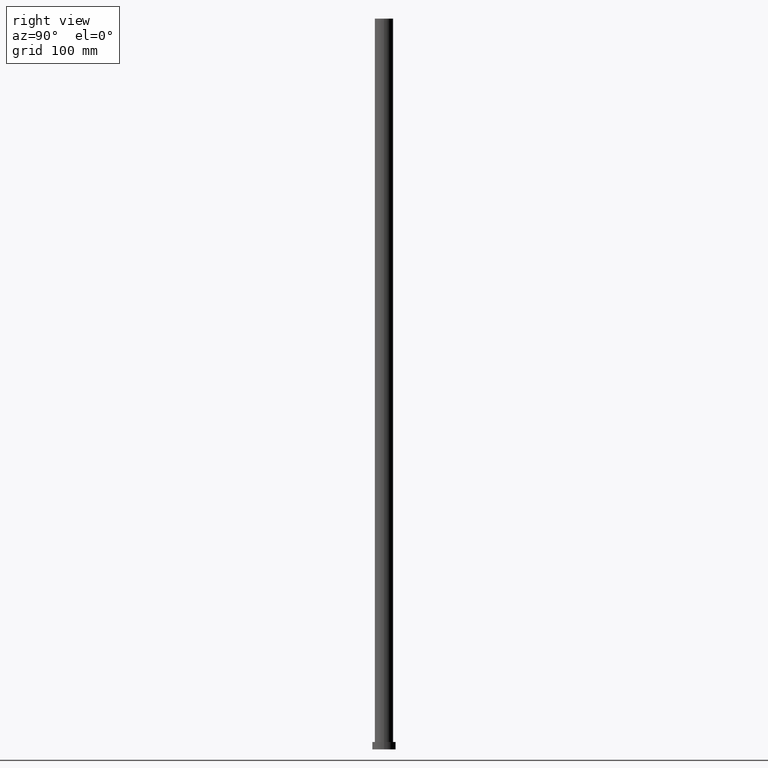
[diagram: clean part render]
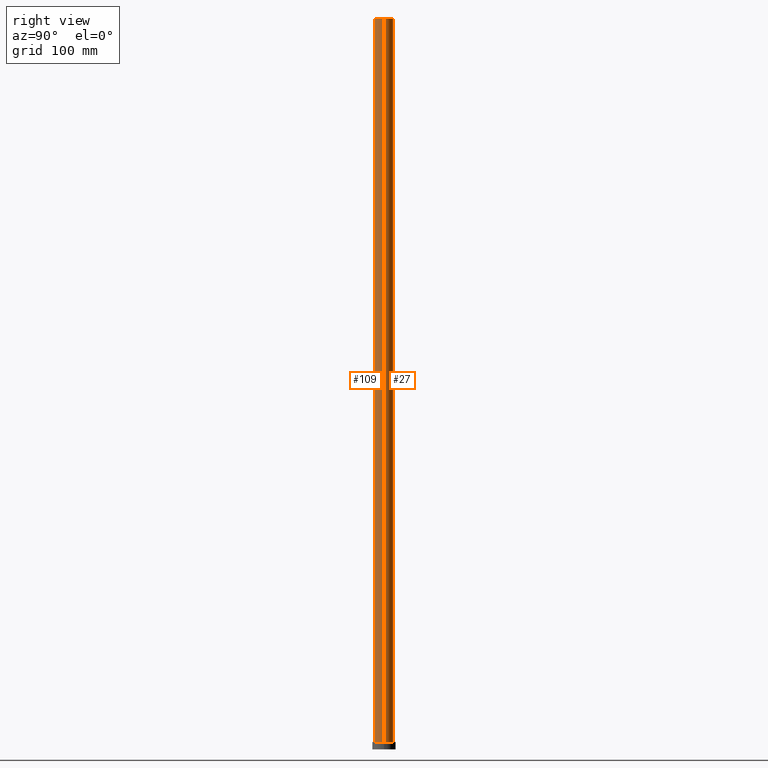
[diagram: same view with one multi-face feature highlighted, each face labeled with its STEP entity id]
A machine part, right view. The highlighted faces form ONE feature: a constant-radius fillet chain: 2 tangent blend faces with common blend radius 12.5 mm. The faces share edges in the B-rep.
Their STEP definitions:
[1] entity #109 (Cylinder):
#20 = EDGE_CURVE ( 'NONE', #81, #159, #241, .T. ) ;
#24 = CYLINDRICAL_SURFACE ( 'NONE', #232, 12.50000000000000000 ) ;
#32 = DIRECTION ( 'NONE',  ( -0.000000000000000000, -0.000000000000000000, -1.000000000000000000 ) ) ;
#36 = CARTESIAN_POINT ( 'NONE',  ( 0.000000000000000000, 0.000000000000000000, 10.00000000000000000 ) ) ;
#38 = VERTEX_POINT ( 'NONE', #189 ) ;
#39 = CIRCLE ( 'NONE', #130, 12.50000000000000000 ) ;
#66 = CARTESIAN_POINT ( 'NONE',  ( -12.50000000000000000, 0.000000000000000000, 1000.000000000000000 ) ) ;
#68 = CARTESIAN_POINT ( 'NONE',  ( 12.50000000000000000, 1.530808498934191521E-15, 1000.000000000000000 ) ) ;
#79 = VERTEX_POINT ( 'NONE', #231 ) ;
#81 = VERTEX_POINT ( 'NONE', #190 ) ;
#83 = DIRECTION ( 'NONE',  ( -0.000000000000000000, -0.000000000000000000, -1.000000000000000000 ) ) ;
#85 = LINE ( 'NONE', #68, #211 ) ;
#97 = VECTOR ( 'NONE', #32, 1000.000000000000000 ) ;
#99 = DIRECTION ( 'NONE',  ( -1.000000000000000000, 0.000000000000000000, 0.000000000000000000 ) ) ;
#109 = ADVANCED_FACE ( 'NONE', ( #145 ), #24, .T. ) ;
#118 = EDGE_CURVE ( 'NONE', #79, #38, #85, .T. ) ;
#130 = AXIS2_PLACEMENT_3D ( 'NONE', #36, #138, #204 ) ;
#136 = DIRECTION ( 'NONE',  ( 1.000000000000000000, 0.000000000000000000, 0.000000000000000000 ) ) ;
#138 = DIRECTION ( 'NONE',  ( 0.000000000000000000, 0.000000000000000000, 1.000000000000000000 ) ) ;
#142 = ORIENTED_EDGE ( 'NONE', *, *, #20, .T. ) ;
#144 = DIRECTION ( 'NONE',  ( -0.000000000000000000, -0.000000000000000000, -1.000000000000000000 ) ) ;
#145 = FACE_OUTER_BOUND ( 'NONE', #162, .T. ) ;
#148 = EDGE_CURVE ( 'NONE', #159, #38, #39, .T. ) ;
#156 = CARTESIAN_POINT ( 'NONE',  ( 0.000000000000000000, 0.000000000000000000, 1000.000000000000000 ) ) ;
#159 = VERTEX_POINT ( 'NONE', #224 ) ;
#162 = EDGE_LOOP ( 'NONE', ( #253, #252, #142, #176 ) ) ;
#171 = DIRECTION ( 'NONE',  ( 0.000000000000000000, 0.000000000000000000, 1.000000000000000000 ) ) ;
#176 = ORIENTED_EDGE ( 'NONE', *, *, #148, .T. ) ;
#189 = CARTESIAN_POINT ( 'NONE',  ( 12.50000000000000000, 1.530808498934191521E-15, 10.00000000000000000 ) ) ;
#190 = CARTESIAN_POINT ( 'NONE',  ( -12.50000000000000000, 0.000000000000000000, 1000.000000000000000 ) ) ;
#196 = EDGE_CURVE ( 'NONE', #81, #79, #237, .T. ) ;
#204 = DIRECTION ( 'NONE',  ( 1.000000000000000000, 0.000000000000000000, 0.000000000000000000 ) ) ;
#211 = VECTOR ( 'NONE', #83, 1000.000000000000000 ) ;
#215 = CARTESIAN_POINT ( 'NONE',  ( 0.000000000000000000, 0.000000000000000000, 1000.000000000000000 ) ) ;
#224 = CARTESIAN_POINT ( 'NONE',  ( -12.50000000000000000, 0.000000000000000000, 10.00000000000000000 ) ) ;
#231 = CARTESIAN_POINT ( 'NONE',  ( 12.50000000000000000, 1.530808498934191521E-15, 1000.000000000000000 ) ) ;
#232 = AXIS2_PLACEMENT_3D ( 'NONE', #215, #144, #99 ) ;
#237 = CIRCLE ( 'NONE', #248, 12.50000000000000000 ) ;
#241 = LINE ( 'NONE', #66, #97 ) ;
#248 = AXIS2_PLACEMENT_3D ( 'NONE', #156, #171, #136 ) ;
#252 = ORIENTED_EDGE ( 'NONE', *, *, #196, .F. ) ;
#253 = ORIENTED_EDGE ( 'NONE', *, *, #118, .F. ) ;
[2] entity #27 (Cylinder):
#1 = CIRCLE ( 'NONE', #35, 12.50000000000000000 ) ;
#7 = AXIS2_PLACEMENT_3D ( 'NONE', #92, #115, #174 ) ;
#16 = EDGE_CURVE ( 'NONE', #38, #159, #1, .T. ) ;
#20 = EDGE_CURVE ( 'NONE', #81, #159, #241, .T. ) ;
#27 = ADVANCED_FACE ( 'NONE', ( #72 ), #122, .T. ) ;
#32 = DIRECTION ( 'NONE',  ( -0.000000000000000000, -0.000000000000000000, -1.000000000000000000 ) ) ;
#35 = AXIS2_PLACEMENT_3D ( 'NONE', #44, #43, #98 ) ;
#38 = VERTEX_POINT ( 'NONE', #189 ) ;
#43 = DIRECTION ( 'NONE',  ( 0.000000000000000000, 0.000000000000000000, 1.000000000000000000 ) ) ;
#44 = CARTESIAN_POINT ( 'NONE',  ( 0.000000000000000000, 0.000000000000000000, 10.00000000000000000 ) ) ;
#62 = EDGE_LOOP ( 'NONE', ( #91, #77, #143, #206 ) ) ;
#66 = CARTESIAN_POINT ( 'NONE',  ( -12.50000000000000000, 0.000000000000000000, 1000.000000000000000 ) ) ;
#68 = CARTESIAN_POINT ( 'NONE',  ( 12.50000000000000000, 1.530808498934191521E-15, 1000.000000000000000 ) ) ;
#72 = FACE_OUTER_BOUND ( 'NONE', #62, .T. ) ;
#77 = ORIENTED_EDGE ( 'NONE', *, *, #118, .T. ) ;
#79 = VERTEX_POINT ( 'NONE', #231 ) ;
#81 = VERTEX_POINT ( 'NONE', #190 ) ;
#83 = DIRECTION ( 'NONE',  ( -0.000000000000000000, -0.000000000000000000, -1.000000000000000000 ) ) ;
#85 = LINE ( 'NONE', #68, #211 ) ;
#91 = ORIENTED_EDGE ( 'NONE', *, *, #154, .F. ) ;
#92 = CARTESIAN_POINT ( 'NONE',  ( 0.000000000000000000, 0.000000000000000000, 1000.000000000000000 ) ) ;
#97 = VECTOR ( 'NONE', #32, 1000.000000000000000 ) ;
#98 = DIRECTION ( 'NONE',  ( 1.000000000000000000, 0.000000000000000000, 0.000000000000000000 ) ) ;
#115 = DIRECTION ( 'NONE',  ( 0.000000000000000000, 0.000000000000000000, 1.000000000000000000 ) ) ;
#118 = EDGE_CURVE ( 'NONE', #79, #38, #85, .T. ) ;
#121 = CIRCLE ( 'NONE', #7, 12.50000000000000000 ) ;
#122 = CYLINDRICAL_SURFACE ( 'NONE', #170, 12.50000000000000000 ) ;
#143 = ORIENTED_EDGE ( 'NONE', *, *, #16, .T. ) ;
#154 = EDGE_CURVE ( 'NONE', #79, #81, #121, .T. ) ;
#159 = VERTEX_POINT ( 'NONE', #224 ) ;
#170 = AXIS2_PLACEMENT_3D ( 'NONE', #233, #212, #198 ) ;
#174 = DIRECTION ( 'NONE',  ( 1.000000000000000000, 0.000000000000000000, 0.000000000000000000 ) ) ;
#189 = CARTESIAN_POINT ( 'NONE',  ( 12.50000000000000000, 1.530808498934191521E-15, 10.00000000000000000 ) ) ;
#190 = CARTESIAN_POINT ( 'NONE',  ( -12.50000000000000000, 0.000000000000000000, 1000.000000000000000 ) ) ;
#198 = DIRECTION ( 'NONE',  ( -1.000000000000000000, 0.000000000000000000, 0.000000000000000000 ) ) ;
#206 = ORIENTED_EDGE ( 'NONE', *, *, #20, .F. ) ;
#211 = VECTOR ( 'NONE', #83, 1000.000000000000000 ) ;
#212 = DIRECTION ( 'NONE',  ( -0.000000000000000000, -0.000000000000000000, -1.000000000000000000 ) ) ;
#224 = CARTESIAN_POINT ( 'NONE',  ( -12.50000000000000000, 0.000000000000000000, 10.00000000000000000 ) ) ;
#231 = CARTESIAN_POINT ( 'NONE',  ( 12.50000000000000000, 1.530808498934191521E-15, 1000.000000000000000 ) ) ;
#233 = CARTESIAN_POINT ( 'NONE',  ( 0.000000000000000000, 0.000000000000000000, 1000.000000000000000 ) ) ;
#241 = LINE ( 'NONE', #66, #97 ) ;